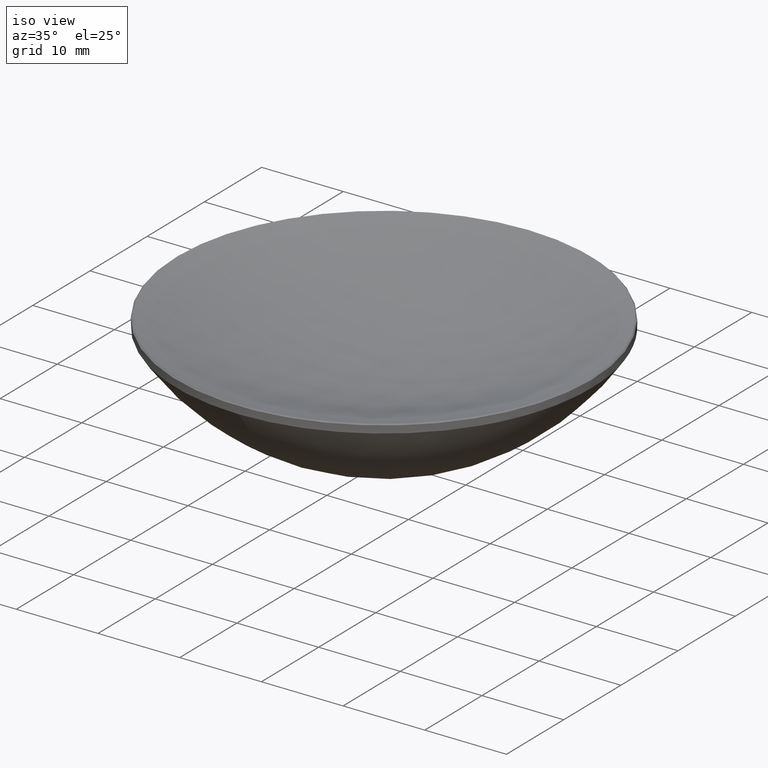
[diagram: clean part render]
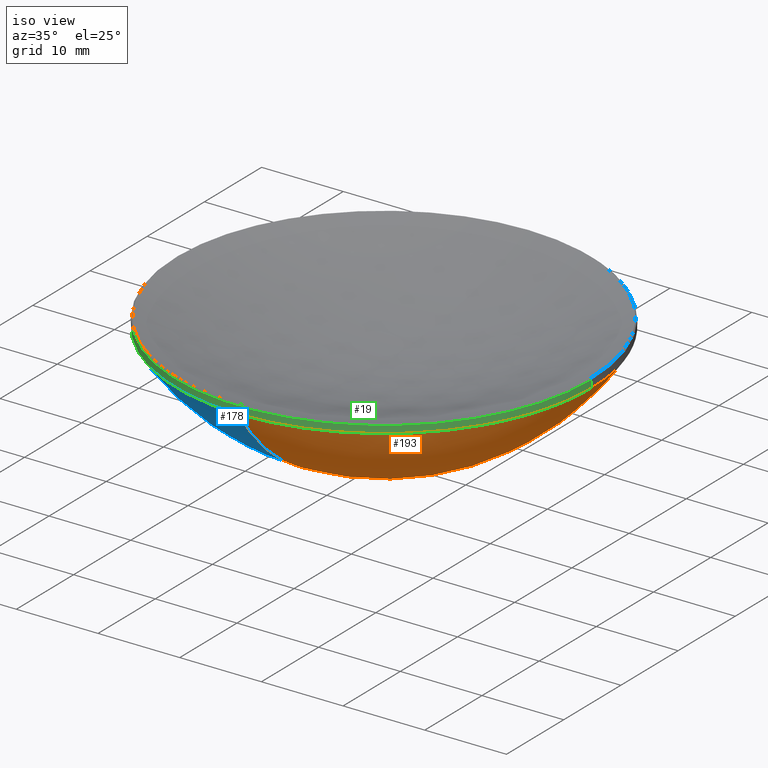
[diagram: same view with three faces highlighted in distinct colors, each labeled with its STEP entity id]
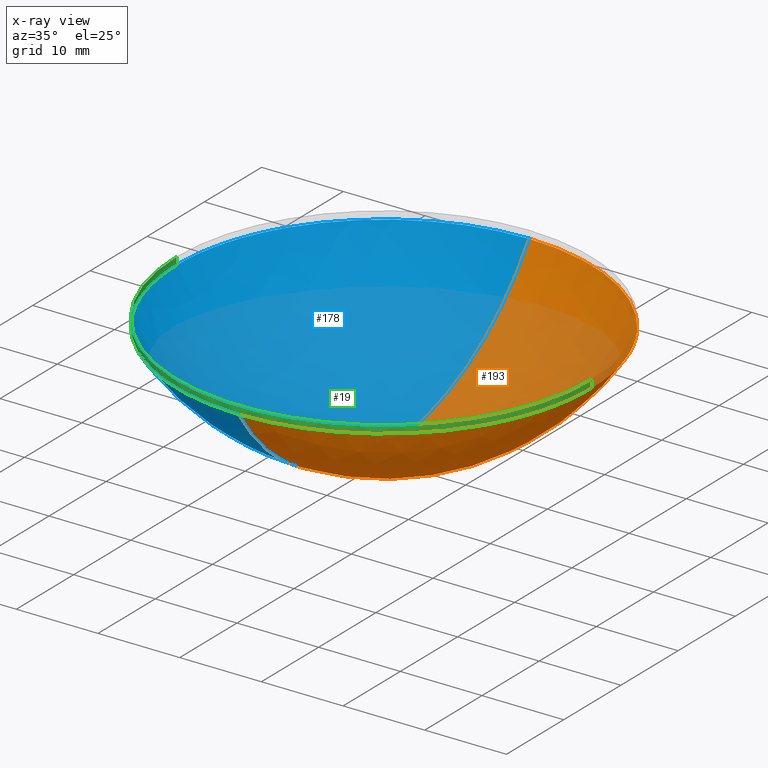
[diagram: x-ray of the same camera — body ghosted, the three highlighted faces saturated]
A machine part, iso view with three faces highlighted in distinct colors.
The next image is the same camera in x-ray (body ghosted, the three faces saturated) — at least one of them is partly hidden behind the body in this view.
Their STEP definitions:

[orange] entity #193 — the highlighted spherical surface has radius 30.34 mm.
#12 = DIRECTION ( 'NONE',  ( 1.000000000000000000, 0.000000000000000000, 0.000000000000000000 ) ) ;
#20 = AXIS2_PLACEMENT_3D ( 'NONE', #192, #58, #147 ) ;
#21 = VERTEX_POINT ( 'NONE', #142 ) ;
#44 = AXIS2_PLACEMENT_3D ( 'NONE', #97, #271, #80 ) ;
#45 = ORIENTED_EDGE ( 'NONE', *, *, #261, .F. ) ;
#58 = DIRECTION ( 'NONE',  ( 1.000000000000000000, -0.000000000000000000, 0.000000000000000000 ) ) ;
#65 = CIRCLE ( 'NONE', #44, 30.33999999999999986 ) ;
#68 = VERTEX_POINT ( 'NONE', #88 ) ;
#80 = DIRECTION ( 'NONE',  ( -1.224646799147353207E-16, -1.000000000000000000, 0.000000000000000000 ) ) ;
#88 = CARTESIAN_POINT ( 'NONE',  ( 25.39999999999999503, 3.110602869834276471E-15, 16.00000000000000000 ) ) ;
#97 = CARTESIAN_POINT ( 'NONE',  ( 0.000000000000000000, 0.000000000000000000, 32.59384223138210501 ) ) ;
#109 = VERTEX_POINT ( 'NONE', #210 ) ;
#122 = DIRECTION ( 'NONE',  ( -1.000000000000000000, 0.000000000000000000, 0.000000000000000000 ) ) ;
#123 = CARTESIAN_POINT ( 'NONE',  ( 0.000000000000000000, 0.000000000000000000, 16.00000000000000000 ) ) ;
#125 = CARTESIAN_POINT ( 'NONE',  ( -3.110602869834276076E-15, -25.39999999999999503, 16.00000000000000000 ) ) ;
#126 = AXIS2_PLACEMENT_3D ( 'NONE', #123, #195, #12 ) ;
#142 = CARTESIAN_POINT ( 'NONE',  ( 0.000000000000000000, 25.39999999999999503, 16.00000000000000000 ) ) ;
#146 = AXIS2_PLACEMENT_3D ( 'NONE', #278, #122, #212 ) ;
#147 = DIRECTION ( 'NONE',  ( 0.000000000000000000, 0.000000000000000000, -1.000000000000000000 ) ) ;
#157 = ORIENTED_EDGE ( 'NONE', *, *, #265, .F. ) ;
#166 = CIRCLE ( 'NONE', #174, 25.39999999999999503 ) ;
#169 = DIRECTION ( 'NONE',  ( -0.000000000000000000, -0.000000000000000000, 1.000000000000000000 ) ) ;
#174 = AXIS2_PLACEMENT_3D ( 'NONE', #273, #169, #214 ) ;
#182 = CIRCLE ( 'NONE', #20, 30.33999999999999986 ) ;
#184 = EDGE_CURVE ( 'NONE', #237, #68, #166, .T. ) ;
#192 = CARTESIAN_POINT ( 'NONE',  ( 0.000000000000000000, 0.000000000000000000, 32.59384223138210501 ) ) ;
#193 = ADVANCED_FACE ( 'NONE', ( #247 ), #228, .T. ) ;
#195 = DIRECTION ( 'NONE',  ( -0.000000000000000000, -0.000000000000000000, 1.000000000000000000 ) ) ;
#210 = CARTESIAN_POINT ( 'NONE',  ( 0.000000000000000000, 1.857789194306534769E-15, 2.253842231382106931 ) ) ;
#212 = DIRECTION ( 'NONE',  ( 0.000000000000000000, 1.000000000000000000, 0.000000000000000000 ) ) ;
#214 = DIRECTION ( 'NONE',  ( 1.000000000000000000, 0.000000000000000000, 0.000000000000000000 ) ) ;
#220 = ORIENTED_EDGE ( 'NONE', *, *, #234, .T. ) ;
#228 = SPHERICAL_SURFACE ( 'NONE', #146, 30.33999999999999986 ) ;
#233 = ORIENTED_EDGE ( 'NONE', *, *, #184, .F. ) ;
#234 = EDGE_CURVE ( 'NONE', #109, #21, #182, .T. ) ;
#237 = VERTEX_POINT ( 'NONE', #125 ) ;
#247 = FACE_OUTER_BOUND ( 'NONE', #263, .T. ) ;
#261 = EDGE_CURVE ( 'NONE', #109, #237, #65, .T. ) ;
#263 = EDGE_LOOP ( 'NONE', ( #45, #220, #157, #233 ) ) ;
#265 = EDGE_CURVE ( 'NONE', #68, #21, #272, .T. ) ;
#271 = DIRECTION ( 'NONE',  ( -1.000000000000000000, 1.224646799147353207E-16, 0.000000000000000000 ) ) ;
#272 = CIRCLE ( 'NONE', #126, 25.39999999999999503 ) ;
#273 = CARTESIAN_POINT ( 'NONE',  ( 0.000000000000000000, 0.000000000000000000, 16.00000000000000000 ) ) ;
#278 = CARTESIAN_POINT ( 'NONE',  ( 0.000000000000000000, 0.000000000000000000, 32.59384223138210501 ) ) ;

[blue] entity #178 — the highlighted spherical surface has radius 30.34 mm.
#3 = AXIS2_PLACEMENT_3D ( 'NONE', #270, #124, #103 ) ;
#14 = DIRECTION ( 'NONE',  ( -0.000000000000000000, -0.000000000000000000, 1.000000000000000000 ) ) ;
#18 = CIRCLE ( 'NONE', #181, 25.39999999999999503 ) ;
#20 = AXIS2_PLACEMENT_3D ( 'NONE', #192, #58, #147 ) ;
#21 = VERTEX_POINT ( 'NONE', #142 ) ;
#27 = CIRCLE ( 'NONE', #104, 25.39999999999999503 ) ;
#41 = EDGE_LOOP ( 'NONE', ( #110, #155, #257, #132 ) ) ;
#44 = AXIS2_PLACEMENT_3D ( 'NONE', #97, #271, #80 ) ;
#58 = DIRECTION ( 'NONE',  ( 1.000000000000000000, -0.000000000000000000, 0.000000000000000000 ) ) ;
#60 = DIRECTION ( 'NONE',  ( 1.000000000000000000, 0.000000000000000000, 0.000000000000000000 ) ) ;
#65 = CIRCLE ( 'NONE', #44, 30.33999999999999986 ) ;
#80 = DIRECTION ( 'NONE',  ( -1.224646799147353207E-16, -1.000000000000000000, 0.000000000000000000 ) ) ;
#89 = CARTESIAN_POINT ( 'NONE',  ( -25.39999999999999503, 0.000000000000000000, 16.00000000000000000 ) ) ;
#94 = VERTEX_POINT ( 'NONE', #89 ) ;
#97 = CARTESIAN_POINT ( 'NONE',  ( 0.000000000000000000, 0.000000000000000000, 32.59384223138210501 ) ) ;
#103 = DIRECTION ( 'NONE',  ( 0.000000000000000000, 1.000000000000000000, 0.000000000000000000 ) ) ;
#104 = AXIS2_PLACEMENT_3D ( 'NONE', #118, #186, #163 ) ;
#107 = EDGE_CURVE ( 'NONE', #21, #94, #27, .T. ) ;
#109 = VERTEX_POINT ( 'NONE', #210 ) ;
#110 = ORIENTED_EDGE ( 'NONE', *, *, #234, .F. ) ;
#118 = CARTESIAN_POINT ( 'NONE',  ( 0.000000000000000000, 0.000000000000000000, 16.00000000000000000 ) ) ;
#124 = DIRECTION ( 'NONE',  ( -1.000000000000000000, 0.000000000000000000, 0.000000000000000000 ) ) ;
#125 = CARTESIAN_POINT ( 'NONE',  ( -3.110602869834276076E-15, -25.39999999999999503, 16.00000000000000000 ) ) ;
#132 = ORIENTED_EDGE ( 'NONE', *, *, #107, .F. ) ;
#142 = CARTESIAN_POINT ( 'NONE',  ( 0.000000000000000000, 25.39999999999999503, 16.00000000000000000 ) ) ;
#147 = DIRECTION ( 'NONE',  ( 0.000000000000000000, 0.000000000000000000, -1.000000000000000000 ) ) ;
#153 = CARTESIAN_POINT ( 'NONE',  ( 0.000000000000000000, 0.000000000000000000, 16.00000000000000000 ) ) ;
#155 = ORIENTED_EDGE ( 'NONE', *, *, #261, .T. ) ;
#160 = EDGE_CURVE ( 'NONE', #94, #237, #18, .T. ) ;
#163 = DIRECTION ( 'NONE',  ( 1.000000000000000000, 0.000000000000000000, 0.000000000000000000 ) ) ;
#178 = ADVANCED_FACE ( 'NONE', ( #275 ), #191, .T. ) ;
#181 = AXIS2_PLACEMENT_3D ( 'NONE', #153, #14, #60 ) ;
#182 = CIRCLE ( 'NONE', #20, 30.33999999999999986 ) ;
#186 = DIRECTION ( 'NONE',  ( -0.000000000000000000, -0.000000000000000000, 1.000000000000000000 ) ) ;
#191 = SPHERICAL_SURFACE ( 'NONE', #3, 30.33999999999999986 ) ;
#192 = CARTESIAN_POINT ( 'NONE',  ( 0.000000000000000000, 0.000000000000000000, 32.59384223138210501 ) ) ;
#210 = CARTESIAN_POINT ( 'NONE',  ( 0.000000000000000000, 1.857789194306534769E-15, 2.253842231382106931 ) ) ;
#234 = EDGE_CURVE ( 'NONE', #109, #21, #182, .T. ) ;
#237 = VERTEX_POINT ( 'NONE', #125 ) ;
#257 = ORIENTED_EDGE ( 'NONE', *, *, #160, .F. ) ;
#261 = EDGE_CURVE ( 'NONE', #109, #237, #65, .T. ) ;
#270 = CARTESIAN_POINT ( 'NONE',  ( 0.000000000000000000, 0.000000000000000000, 32.59384223138210501 ) ) ;
#271 = DIRECTION ( 'NONE',  ( -1.000000000000000000, 1.224646799147353207E-16, 0.000000000000000000 ) ) ;
#275 = FACE_OUTER_BOUND ( 'NONE', #41, .T. ) ;

[green] entity #19 — the highlighted cylindrical surface (partial cylindrical patch) has radius 25.4 mm, axis along (-0, -0, -1).
#1 = ORIENTED_EDGE ( 'NONE', *, *, #128, .T. ) ;
#14 = DIRECTION ( 'NONE',  ( -0.000000000000000000, -0.000000000000000000, 1.000000000000000000 ) ) ;
#18 = CIRCLE ( 'NONE', #181, 25.39999999999999503 ) ;
#19 = ADVANCED_FACE ( 'NONE', ( #207 ), #240, .T. ) ;
#24 = VERTEX_POINT ( 'NONE', #139 ) ;
#30 = ORIENTED_EDGE ( 'NONE', *, *, #91, .T. ) ;
#32 = EDGE_CURVE ( 'NONE', #24, #68, #138, .T. ) ;
#36 = DIRECTION ( 'NONE',  ( -0.000000000000000000, -0.000000000000000000, -1.000000000000000000 ) ) ;
#46 = DIRECTION ( 'NONE',  ( -0.000000000000000000, -0.000000000000000000, -1.000000000000000000 ) ) ;
#52 = CARTESIAN_POINT ( 'NONE',  ( -25.39999999999999858, 0.000000000000000000, 16.90000000000001279 ) ) ;
#60 = DIRECTION ( 'NONE',  ( 1.000000000000000000, 0.000000000000000000, 0.000000000000000000 ) ) ;
#68 = VERTEX_POINT ( 'NONE', #88 ) ;
#70 = ORIENTED_EDGE ( 'NONE', *, *, #160, .T. ) ;
#72 = VERTEX_POINT ( 'NONE', #52 ) ;
#83 = EDGE_LOOP ( 'NONE', ( #141, #30, #1, #70, #258 ) ) ;
#88 = CARTESIAN_POINT ( 'NONE',  ( 25.39999999999999503, 3.110602869834276471E-15, 16.00000000000000000 ) ) ;
#89 = CARTESIAN_POINT ( 'NONE',  ( -25.39999999999999503, 0.000000000000000000, 16.00000000000000000 ) ) ;
#91 = EDGE_CURVE ( 'NONE', #24, #72, #112, .T. ) ;
#94 = VERTEX_POINT ( 'NONE', #89 ) ;
#101 = CARTESIAN_POINT ( 'NONE',  ( -25.39999999999999858, 0.000000000000000000, 20.00000000000000000 ) ) ;
#112 = CIRCLE ( 'NONE', #151, 25.39999999999999858 ) ;
#125 = CARTESIAN_POINT ( 'NONE',  ( -3.110602869834276076E-15, -25.39999999999999503, 16.00000000000000000 ) ) ;
#128 = EDGE_CURVE ( 'NONE', #72, #94, #255, .T. ) ;
#138 = LINE ( 'NONE', #143, #187 ) ;
#139 = CARTESIAN_POINT ( 'NONE',  ( 25.39999999999999858, 3.110602869834276865E-15, 16.90000000000001279 ) ) ;
#141 = ORIENTED_EDGE ( 'NONE', *, *, #32, .F. ) ;
#143 = CARTESIAN_POINT ( 'NONE',  ( 25.39999999999999858, 3.110602869834276865E-15, 20.00000000000000000 ) ) ;
#151 = AXIS2_PLACEMENT_3D ( 'NONE', #225, #185, #206 ) ;
#153 = CARTESIAN_POINT ( 'NONE',  ( 0.000000000000000000, 0.000000000000000000, 16.00000000000000000 ) ) ;
#158 = VECTOR ( 'NONE', #36, 1000.000000000000000 ) ;
#160 = EDGE_CURVE ( 'NONE', #94, #237, #18, .T. ) ;
#166 = CIRCLE ( 'NONE', #174, 25.39999999999999503 ) ;
#169 = DIRECTION ( 'NONE',  ( -0.000000000000000000, -0.000000000000000000, 1.000000000000000000 ) ) ;
#174 = AXIS2_PLACEMENT_3D ( 'NONE', #273, #169, #214 ) ;
#181 = AXIS2_PLACEMENT_3D ( 'NONE', #153, #14, #60 ) ;
#184 = EDGE_CURVE ( 'NONE', #237, #68, #166, .T. ) ;
#185 = DIRECTION ( 'NONE',  ( 0.000000000000000000, 0.000000000000000000, -1.000000000000000000 ) ) ;
#187 = VECTOR ( 'NONE', #268, 1000.000000000000000 ) ;
#206 = DIRECTION ( 'NONE',  ( 1.000000000000000000, 0.000000000000000000, 0.000000000000000000 ) ) ;
#207 = FACE_OUTER_BOUND ( 'NONE', #83, .T. ) ;
#208 = CARTESIAN_POINT ( 'NONE',  ( 0.000000000000000000, 0.000000000000000000, 20.00000000000000000 ) ) ;
#214 = DIRECTION ( 'NONE',  ( 1.000000000000000000, 0.000000000000000000, 0.000000000000000000 ) ) ;
#225 = CARTESIAN_POINT ( 'NONE',  ( 0.000000000000000000, 0.000000000000000000, 16.90000000000001279 ) ) ;
#237 = VERTEX_POINT ( 'NONE', #125 ) ;
#239 = DIRECTION ( 'NONE',  ( -1.000000000000000000, 0.000000000000000000, 0.000000000000000000 ) ) ;
#240 = CYLINDRICAL_SURFACE ( 'NONE', #277, 25.39999999999999858 ) ;
#255 = LINE ( 'NONE', #101, #158 ) ;
#258 = ORIENTED_EDGE ( 'NONE', *, *, #184, .T. ) ;
#268 = DIRECTION ( 'NONE',  ( -0.000000000000000000, -0.000000000000000000, -1.000000000000000000 ) ) ;
#273 = CARTESIAN_POINT ( 'NONE',  ( 0.000000000000000000, 0.000000000000000000, 16.00000000000000000 ) ) ;
#277 = AXIS2_PLACEMENT_3D ( 'NONE', #208, #46, #239 ) ;